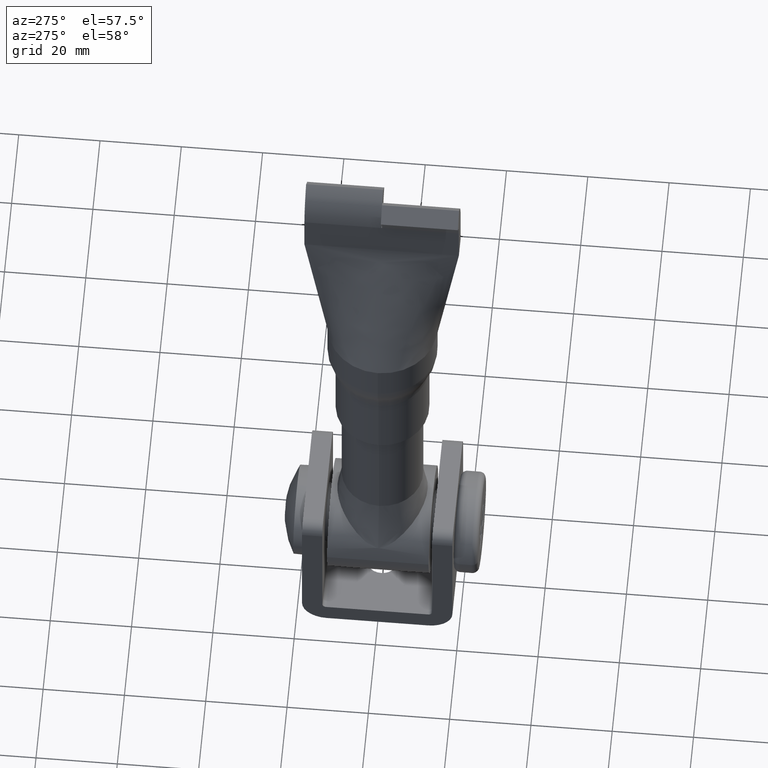
[diagram: clean part render]
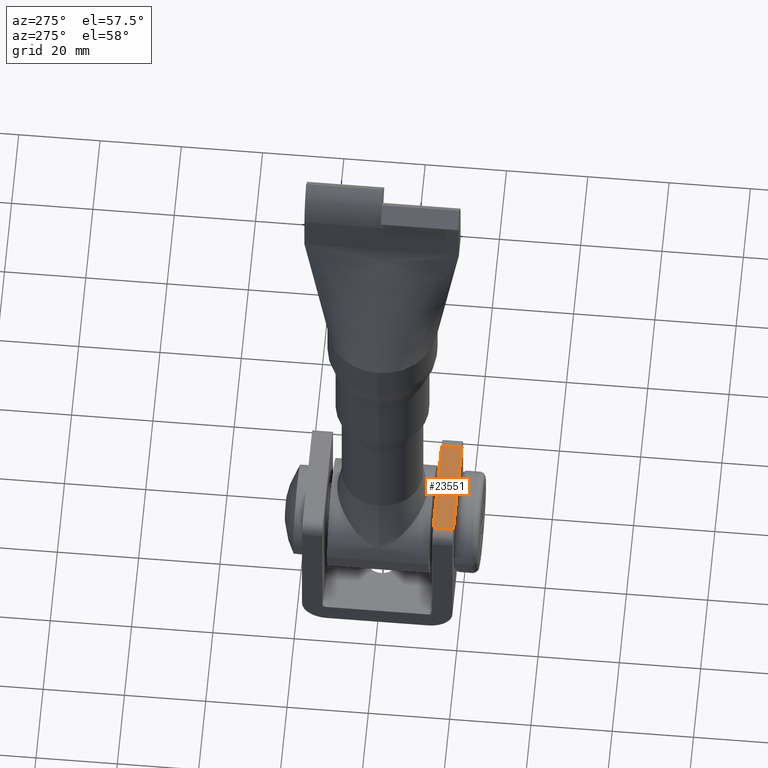
[diagram: same view with one face highlighted and labeled with its STEP entity id]
A machine part, auxiliary view. The second image highlights one B-rep face of the part: STEP entity #23551.
In plain terms, the highlighted planar face has unit normal (0, -0, -1).
Its self-contained STEP definition (entity closure, byte-faithful):
#242 = EDGE_LOOP ( 'NONE', ( #11850, #24891, #6411, #655 ) ) ;
#655 = ORIENTED_EDGE ( 'NONE', *, *, #20553, .T. ) ;
#855 = VECTOR ( 'NONE', #17775, 1000.000000000000000 ) ;
#3593 = DIRECTION ( 'NONE',  ( -0.0000000000000000000, 1.000000000000000000, -6.938893903907233300E-016 ) ) ;
#3605 = VERTEX_POINT ( 'NONE', #15765 ) ;
#4036 = EDGE_CURVE ( 'NONE', #3605, #20977, #14976, .T. ) ;
#5044 = CARTESIAN_POINT ( 'NONE',  ( 15.00000000000000000, -18.49999999999999600, 17.00000000000000400 ) ) ;
#6295 = LINE ( 'NONE', #13766, #16931 ) ;
#6411 = ORIENTED_EDGE ( 'NONE', *, *, #13035, .F. ) ;
#6645 = CARTESIAN_POINT ( 'NONE',  ( -12.00000000000000000, -13.49999999999999800, 17.00000000000000000 ) ) ;
#8526 = CARTESIAN_POINT ( 'NONE',  ( 12.00000000000000000, -18.49999999999999600, 17.00000000000000400 ) ) ;
#8947 = EDGE_CURVE ( 'NONE', #20977, #9244, #9958, .T. ) ;
#9244 = VERTEX_POINT ( 'NONE', #14749 ) ;
#9958 = LINE ( 'NONE', #15904, #855 ) ;
#10588 = FACE_OUTER_BOUND ( 'NONE', #242, .T. ) ;
#11850 = ORIENTED_EDGE ( 'NONE', *, *, #4036, .T. ) ;
#12815 = PLANE ( 'NONE',  #20056 ) ;
#13035 = EDGE_CURVE ( 'NONE', #15160, #9244, #16105, .T. ) ;
#13766 = CARTESIAN_POINT ( 'NONE',  ( 12.00000000000000000, -13.50000000000000000, 17.00000000000000000 ) ) ;
#14237 = VECTOR ( 'NONE', #15280, 1000.000000000000000 ) ;
#14649 = VECTOR ( 'NONE', #21118, 1000.000000000000000 ) ;
#14749 = CARTESIAN_POINT ( 'NONE',  ( -12.00000000000000000, -18.49999999999999600, 17.00000000000000400 ) ) ;
#14795 = CARTESIAN_POINT ( 'NONE',  ( 15.00000000000000000, -13.49999999999999800, 17.00000000000000000 ) ) ;
#14892 = DIRECTION ( 'NONE',  ( 0.0000000000000000000, 1.000000000000000000, -6.938893903907233300E-016 ) ) ;
#14976 = LINE ( 'NONE', #17422, #14649 ) ;
#15160 = VERTEX_POINT ( 'NONE', #8526 ) ;
#15280 = DIRECTION ( 'NONE',  ( -1.000000000000000000, -0.0000000000000000000, -0.0000000000000000000 ) ) ;
#15765 = CARTESIAN_POINT ( 'NONE',  ( 12.00000000000000000, -13.49999999999999800, 17.00000000000000000 ) ) ;
#15904 = CARTESIAN_POINT ( 'NONE',  ( -12.00000000000000000, -13.49999999999999800, 17.00000000000000000 ) ) ;
#16105 = LINE ( 'NONE', #5044, #14237 ) ;
#16931 = VECTOR ( 'NONE', #3593, 1000.000000000000000 ) ;
#17422 = CARTESIAN_POINT ( 'NONE',  ( 15.00000000000000000, -13.49999999999999800, 17.00000000000000000 ) ) ;
#17775 = DIRECTION ( 'NONE',  ( 0.0000000000000000000, -1.000000000000000000, 6.938893903907233300E-016 ) ) ;
#20056 = AXIS2_PLACEMENT_3D ( 'NONE', #14795, #20872, #14892 ) ;
#20553 = EDGE_CURVE ( 'NONE', #15160, #3605, #6295, .T. ) ;
#20872 = DIRECTION ( 'NONE',  ( 0.0000000000000000000, -6.938893903907233300E-016, -1.000000000000000000 ) ) ;
#20977 = VERTEX_POINT ( 'NONE', #6645 ) ;
#21118 = DIRECTION ( 'NONE',  ( -1.000000000000000000, -0.0000000000000000000, -0.0000000000000000000 ) ) ;
#23551 = ADVANCED_FACE ( 'NONE', ( #10588 ), #12815, .F. ) ;
#24891 = ORIENTED_EDGE ( 'NONE', *, *, #8947, .T. ) ;